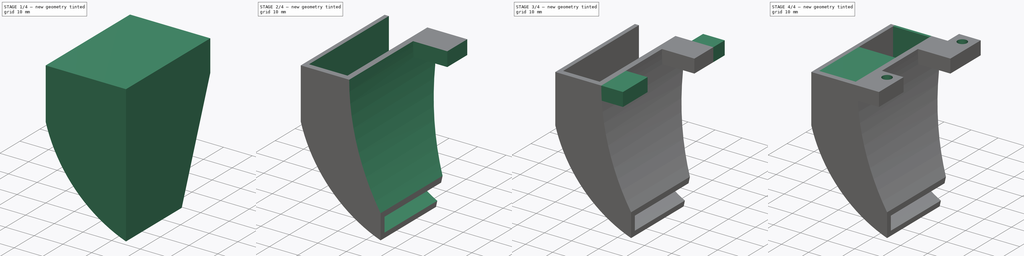
[diagram: build sequence overview — one tinted view per stage of 4, left to right]
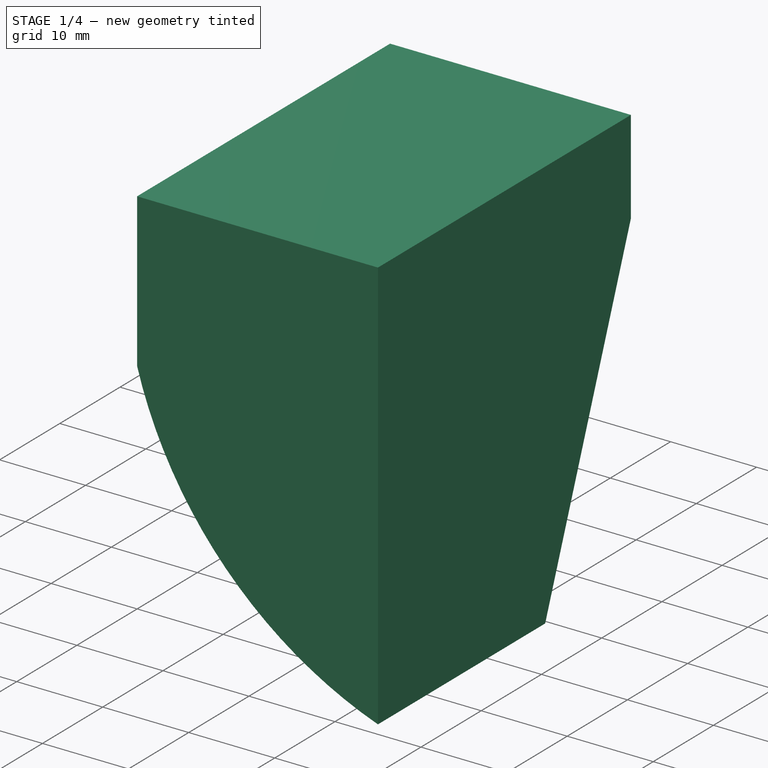
[diagram: stage 1 of 4 — iso view after this stage's code; geometry added in this stage tinted green]
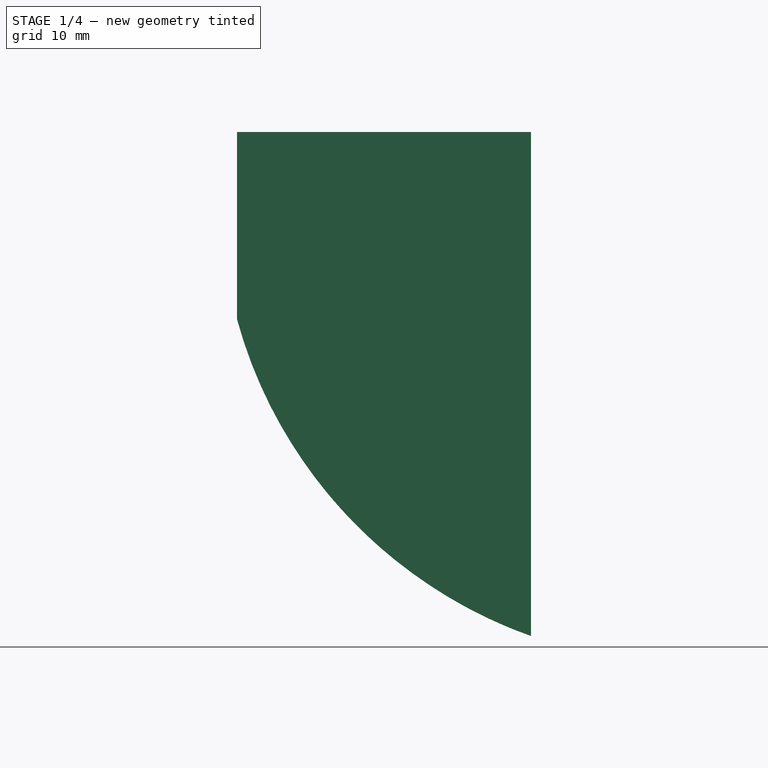
[diagram: stage 1 of 4 — front view after this stage's code; geometry added in this stage tinted green]
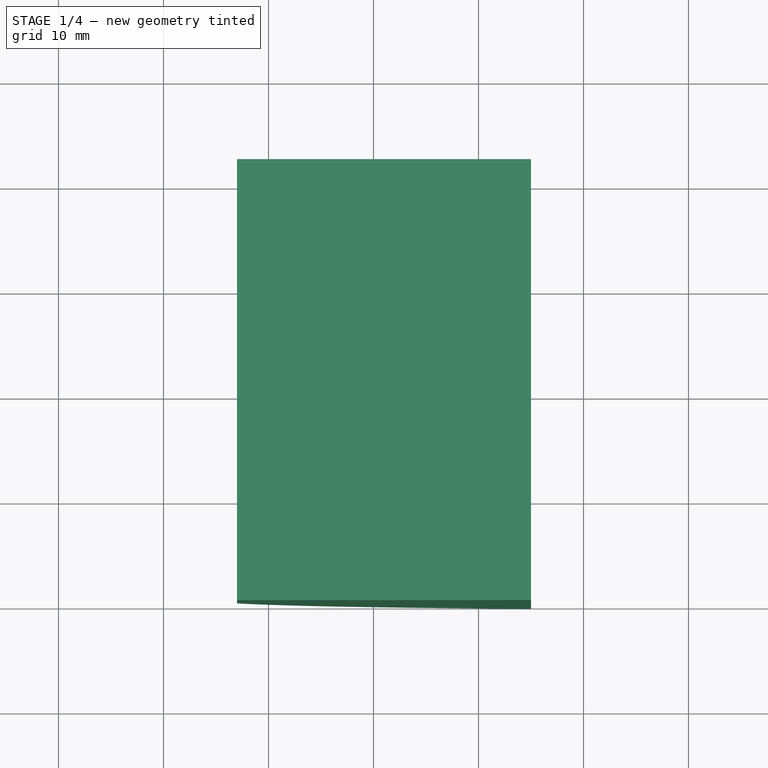
[diagram: stage 1 of 4 — top view after this stage's code; geometry added in this stage tinted green]
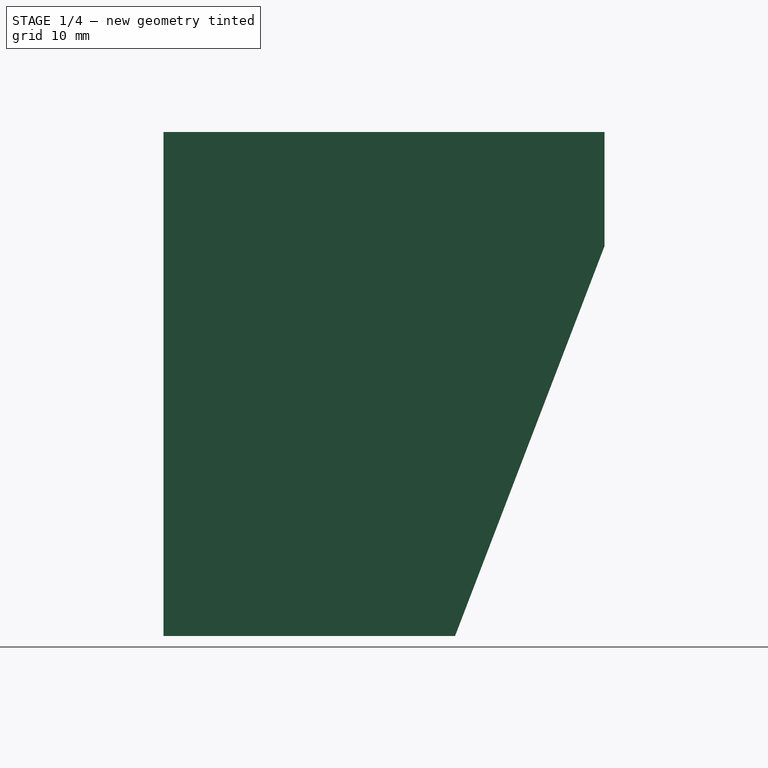
[diagram: stage 1 of 4 — right view after this stage's code; geometry added in this stage tinted green]
FCSTD DOCUMENT  (FreeCAD 0.19R)
Label: FanDuct
License: All rights reserved
LicenseURL: http://en.wikipedia.org/wiki/All_rights_reserved
objects: Sketcher::SketchObject×14, PartDesign::Pad×6, PartDesign::Pocket×5, PartDesign::Body×1
note: 37 computed .brp shape members not serialized (recipe doc carries the construction recipe); baked Part::Feature solids carry a one-line shape summary decoded from their .brp

FEATURE [Sketcher::SketchObject] Sketch
  FullyConstrained = true
  MapMode = 5
  Support = -> [XY_Plane]
  sketch-geometry (19):
    g0: Circle CenterX=0 CenterY=-40 CenterZ=0 NormalX=0 NormalY=0 NormalZ=1 AngleXU=0 Radius=4.5
    g1: Circle CenterX=-22 CenterY=-40 CenterZ=0 NormalX=0 NormalY=0 NormalZ=1 AngleXU=0 Radius=2.5
    g2: Circle CenterX=-18 CenterY=-6 CenterZ=0 NormalX=0 NormalY=0 NormalZ=1 AngleXU=0 Radius=1.9
    g3: LineSegment StartX=-28 StartY=0 StartZ=0 EndX=0 EndY=0 EndZ=0
    g4: LineSegment StartX=0 StartY=0 StartZ=0 EndX=0 EndY=-50 EndZ=0
    g5: LineSegment StartX=0 StartY=-50 StartZ=0 EndX=-28 EndY=-50 EndZ=0
    g6: LineSegment StartX=-28 StartY=-50 StartZ=0 EndX=-28 EndY=0 EndZ=0
    g7: LineSegment StartX=-43 StartY=-8 StartZ=0 EndX=-28 EndY=-8 EndZ=0
    g8: LineSegment StartX=-28 StartY=-8 StartZ=0 EndX=-28 EndY=-28 EndZ=0
    g9: LineSegment StartX=-28 StartY=-28 StartZ=0 EndX=-43 EndY=-28 EndZ=0
    g10: LineSegment StartX=-43 StartY=-28 StartZ=0 EndX=-43 EndY=-8 EndZ=0
    g11: LineSegment StartX=-43 StartY=-8 StartZ=0 EndX=-15 EndY=-8 EndZ=0
    g12: LineSegment StartX=-15 StartY=-8 StartZ=0 EndX=-15 EndY=-50 EndZ=0
    g13: LineSegment StartX=-15 StartY=-50 StartZ=0 EndX=-43 EndY=-50 EndZ=0
    g14: LineSegment StartX=-43 StartY=-50 StartZ=0 EndX=-43 EndY=-8 EndZ=0
    g15: LineSegment StartX=-8 StartY=-27 StartZ=0 EndX=8 EndY=-27 EndZ=0
    g16: LineSegment StartX=8 StartY=-27 StartZ=0 EndX=8 EndY=-47 EndZ=0
    g17: LineSegment StartX=8 StartY=-47 StartZ=0 EndX=-8 EndY=-47 EndZ=0
    g18: LineSegment StartX=-8 StartY=-47 StartZ=0 EndX=-8 EndY=-27 EndZ=0
  constraints (55):
    c: Diameter(g0) = 9
    c: PointOnObject(g0,g-2)
    c: DistanceY(g0) = -40
    c: Diameter(g1) = 5
    c: DistanceX(g1) = -22
    c: DistanceY(g1) = -40
    c: Diameter(g2) = 3.8
    c: DistanceY(g2) = -6
    c: DistanceX(g2) = -18
    c: Coincident(g3,g4)
    c: Coincident(g4,g5)
    c: Coincident(g5,g6)
    c: Coincident(g6,g3)
    c: Horizontal(g3)
    c: Horizontal(g5)
    c: Vertical(g4)
    c: Vertical(g6)
    c: PointOnObject(g3,g-1)
    c: PointOnObject(g4,g-2)
    c: DistanceX(g3) = -28
    c: DistanceY(g4) = -50
    c: Coincident(g7,g8)
    c: Coincident(g8,g9)
    c: Coincident(g9,g10)
    c: Coincident(g10,g7)
    c: Horizontal(g7)
    c: Horizontal(g9)
    c: Vertical(g8)
    c: Vertical(g10)
    c: DistanceY(g7) = -8
    c: DistanceY(g8) = -28
    c: DistanceX(g7) = -43
    c: DistanceX(g7) = -28
    c: Coincident(g11,g12)
    c: Coincident(g12,g13)
    c: Coincident(g13,g14)
    c: Coincident(g14,g11)
    c: Horizontal(g11)
    c: Horizontal(g13)
    c: Vertical(g12)
    c: Vertical(g14)
    c: Coincident(g11,g7)
    c: PointOnObject(g12,g5)
    c: Coincident(g15,g16)
    c: Coincident(g16,g17)
    c: Coincident(g17,g18)
    c: Coincident(g18,g15)
    c: Horizontal(g15)
    c: Vertical(g16)
    c: Vertical(g18)
    c: Symmetric(g16,g17,g-2)
    c: Distance(g17) = 16
    c: Distance(g16) = 20
    c: DistanceY(g16,g0) = 7
    c: Distance(g15,g12) = 7
FEATURE [PartDesign::Pad] Pad
  Direction = (1,1,1)
  Length = 48
  Length2 = 100
  Profile = -> Sketch
  Reversed = true
  Type = 0
FEATURE [Sketcher::SketchObject] Sketch001
  ExternalGeometry = -> [Pad]
  FullyConstrained = true
  MapMode = 5
  Placement = pos=(0,-50,0) rot=(1,0,0;1.5708rad)
  Support = -> [Pad]
  sketch-geometry (7):
    g0: LineSegment StartX=-8 StartY=-28 StartZ=0 EndX=8 EndY=-28 EndZ=0
    g1: LineSegment StartX=8 StartY=-28 StartZ=0 EndX=8 EndY=-40 EndZ=0
    g2: LineSegment StartX=8 StartY=-40 StartZ=0 EndX=-8 EndY=-40 EndZ=0
    g3: LineSegment StartX=-8 StartY=-40 StartZ=0 EndX=-8 EndY=-28 EndZ=0
    g4: ArcOfCircle CenterX=0 CenterY=-6 CenterZ=0 NormalX=0 NormalY=0 NormalZ=1 AngleXU=0 Radius=44.5982 StartAngle=3.41011 EndAngle=4.36937
    g5: LineSegment StartX=-15 StartY=-48 StartZ=0 EndX=-62.1015 EndY=-92.6627 EndZ=0
    g6: LineSegment StartX=-43 StartY=-17.8322 StartZ=0 EndX=-62.1015 EndY=-92.6627 EndZ=0
  constraints (20):
    c: Coincident(g0,g1)
    c: Coincident(g1,g2)
    c: Coincident(g2,g3)
    c: Coincident(g3,g0)
    c: Horizontal(g2)
    c: Vertical(g1)
    c: Vertical(g3)
    c: Distance(g0) = 16
    c: Symmetric(g0,g0,g-2)
    c: DistanceY(g1,g1) = 12
    c: DistanceY(g2) = -40
    c: PointOnObject(g4,g-2)
    c: PointOnObject(g4,g-3)
    c: DistanceY(g4) = -6
    c: Coincident(g4,g-4)
    c: Coincident(g5,g4)
    c: Coincident(g6,g4)
    c: Coincident(g6,g5)
    c: Distance(g5) = 64.91
    c: Distance(g6) = 77.23
FEATURE [PartDesign::Pocket] Pocket
  BaseFeature = -> Pad
  Length = 5
  Length2 = 100
  Profile = -> Sketch001
  Type = 1
FEATURE [Sketcher::SketchObject] Sketch002
  FullyConstrained = true
  MapMode = 5
  Placement = pos=(-15,0,0) rot=(0.57735,0.57735,0.57735;2.0944rad)
  Support = -> [Pocket]
  sketch-geometry (8):
    g0: LineSegment StartX=-50 StartY=-31 StartZ=0 EndX=-30 EndY=-31 EndZ=0
    g1: LineSegment StartX=-30 StartY=-31 StartZ=0 EndX=-30 EndY=-43 EndZ=0
    g2: LineSegment StartX=-30 StartY=-43 StartZ=0 EndX=-50 EndY=-43 EndZ=0
    g3: LineSegment StartX=-50 StartY=-43 StartZ=0 EndX=-50 EndY=-31 EndZ=0
    g4: GeomPoint X=-40 Y=-50 Z=0
    g5: LineSegment StartX=0 StartY=10 StartZ=0 EndX=-23 EndY=-50 EndZ=0
    g6: LineSegment StartX=0 StartY=10 StartZ=0 EndX=20.2416 EndY=-57.2184 EndZ=0
    g7: LineSegment StartX=-23 StartY=-50 StartZ=0 EndX=20.2416 EndY=-57.2184 EndZ=0
  constraints (23):
    c: Coincident(g0,g1)
    c: Coincident(g1,g2)
    c: Coincident(g2,g3)
    c: Coincident(g3,g0)
    c: Horizontal(g0)
    c: Horizontal(g2)
    c: Vertical(g1)
    c: Vertical(g3)
    c: Distance(g0) = 20
    c: Distance(g1) = 12
    c: DistanceX(g1) = -30
    c: DistanceY(g1) = -43
    c: DistanceY(g4) = -50
    c: DistanceX(g4) = -40
    c: Coincident(g6,g5)
    c: Coincident(g7,g5)
    c: Coincident(g7,g6)
    c: PointOnObject(g5,g-2)
    c: DistanceY(g5) = 10
    c: DistanceX(g5) = -23
    c: DistanceY(g5) = -50
    c: Distance(g7) = 43.84
    c: Distance(g6) = 70.2
FEATURE [PartDesign::Pocket] Pocket001
  BaseFeature = -> Pocket
  Length = 5
  Length2 = 100
  Profile = -> Sketch002
  Type = 1
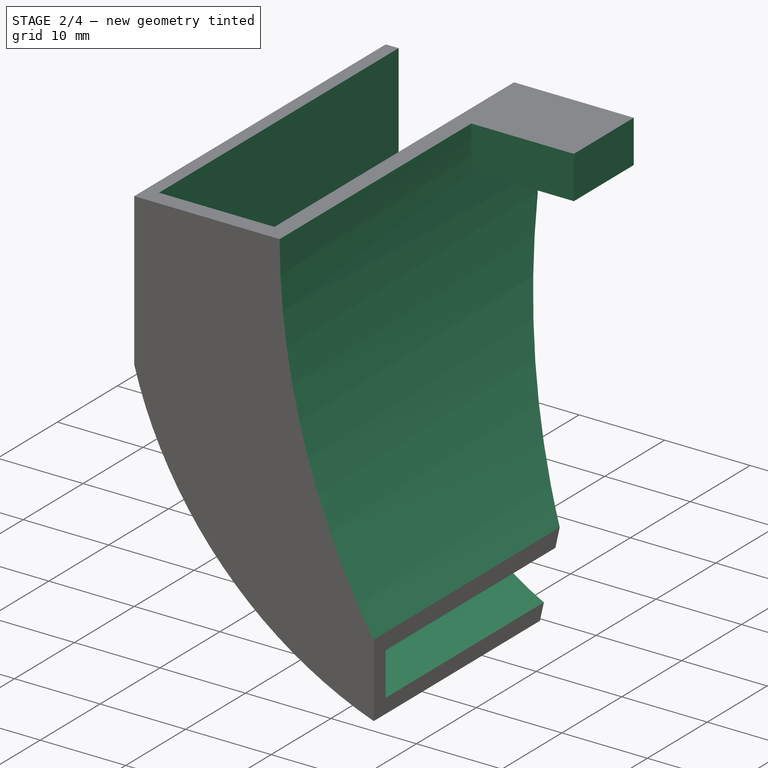
[diagram: stage 2 of 4 — iso view after this stage's code; geometry added in this stage tinted green]
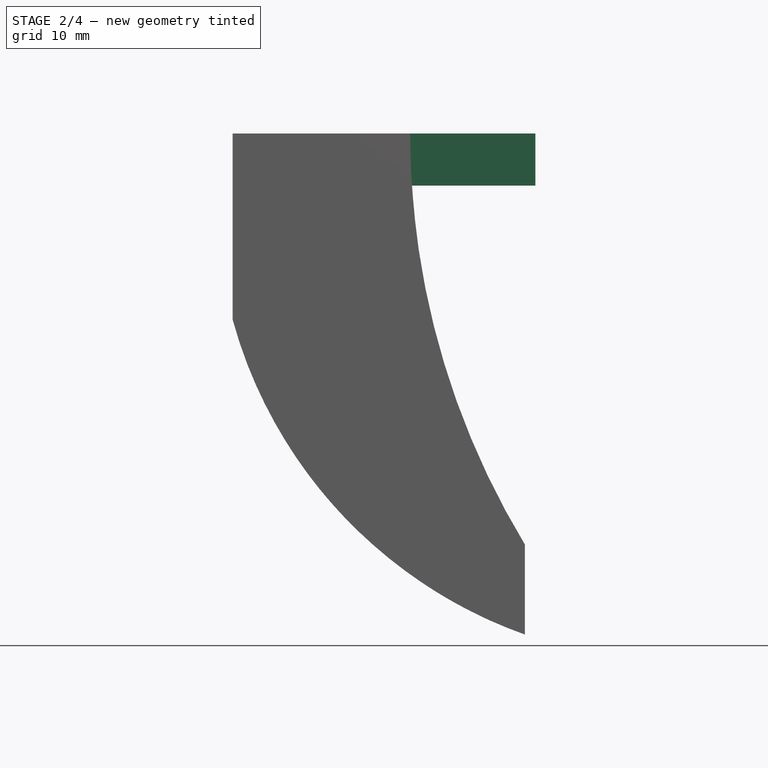
[diagram: stage 2 of 4 — front view after this stage's code; geometry added in this stage tinted green]
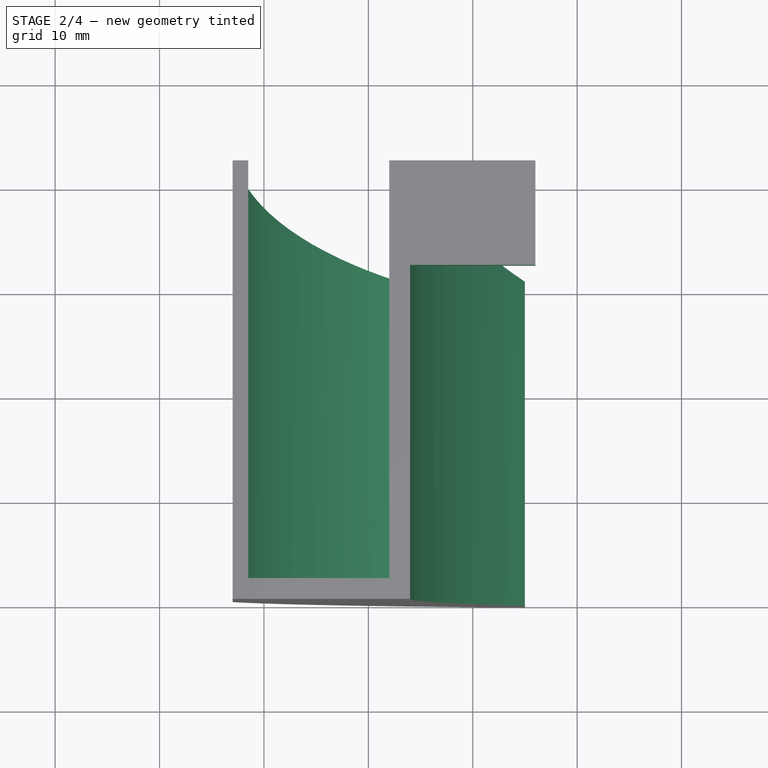
[diagram: stage 2 of 4 — top view after this stage's code; geometry added in this stage tinted green]
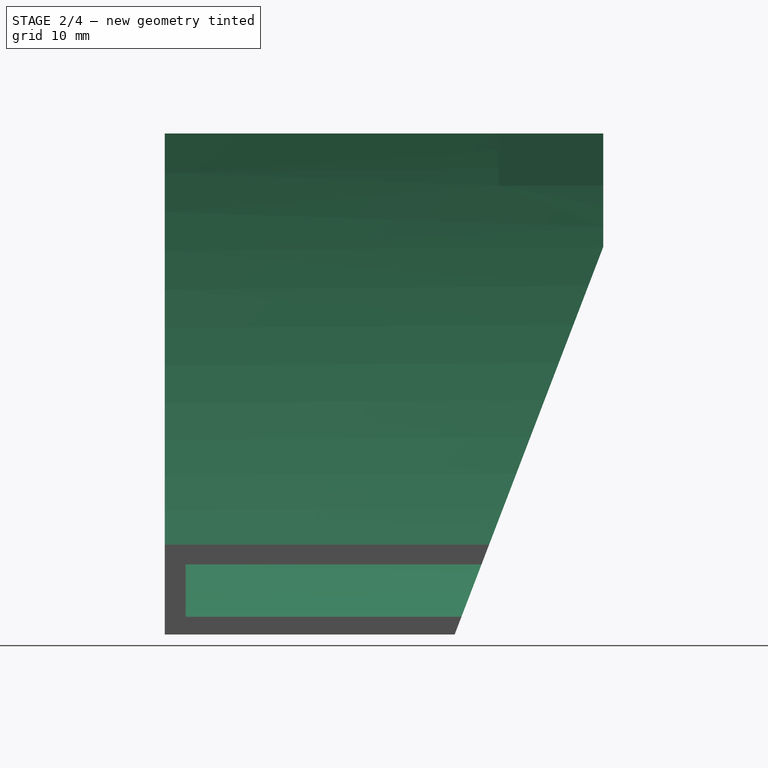
[diagram: stage 2 of 4 — right view after this stage's code; geometry added in this stage tinted green]
FEATURE [Sketcher::SketchObject] Sketch003
  FullyConstrained = true
  MapMode = 5
  Placement = pos=(0,-8,0) rot=(0,0.707107,0.707107;3.14159rad)
  Support = -> [Pocket001]
  sketch-geometry (8):
    g0: ArcOfCircle CenterX=0 CenterY=-6 CenterZ=0 NormalX=0 NormalY=0 NormalZ=1 AngleXU=0 Radius=43 StartAngle=4.71239 EndAngle=6.01828
    g1: LineSegment StartX=41.5 StartY=3 StartZ=0 EndX=41.5 EndY=-17.2583 EndZ=0
    g2: LineSegment StartX=41.5 StartY=3 StartZ=0 EndX=28 EndY=3 EndZ=0
    g3: LineSegment StartX=28 StartY=3 StartZ=0 EndX=28 EndY=-1.78e-14 EndZ=0
    g4: ArcOfCircle CenterX=-44.0179 CenterY=0 CenterZ=0 NormalX=0 NormalY=0 NormalZ=1 AngleXU=0 Radius=72.0179 StartAngle=5.36997 EndAngle=6.28319
    g5: ArcOfCircle CenterX=-44.0179 CenterY=0 CenterZ=0 NormalX=0 NormalY=0 NormalZ=1 AngleXU=0 Radius=72.0179 StartAngle=5.61316 EndAngle=6.28319
    g6: ArcOfCircle CenterX=0 CenterY=-6 CenterZ=0 NormalX=0 NormalY=0 NormalZ=1 AngleXU=0 Radius=43 StartAngle=5.00564 EndAngle=6.01828
    g7: LineSegment StartX=12.43 StartY=-44.7237 StartZ=0 EndX=12.43 EndY=-47.1642 EndZ=0
  constraints (26):
    c: PointOnObject(g0,g-2)
    c: PointOnObject(g0,g-2)
    c: DistanceY(g0) = -6
    c: DistanceY(g0) = -49
    c: Coincident(g1,g0)
    c: Vertical(g1)
    c: DistanceX(g1) = 41.5
    c: DistanceY(g1) = 3
    c: Coincident(g2,g1)
    c: Horizontal(g2)
    c: Coincident(g3,g2)
    c: Vertical(g3)
    c: DistanceX(g2) = 28
    c: Coincident(g4,g3)
    c: PointOnObject(g3,g-1)
    c: PointOnObject(g4,g-2)
    c: PointOnObject(g4,g-1)
    c: Distance(g4,g0) = 8
    c: Coincident(g5,g4)
    c: Coincident(g5,g3)
    c: Coincident(g6,g0)
    c: Coincident(g6,g1)
    c: Coincident(g7,g5)
    c: Coincident(g7,g6)
    c: Vertical(g7)
    c: DistanceX(g5) = 12.43
FEATURE [PartDesign::Pocket] Pocket002
  BaseFeature = -> Pocket001
  Length = 40
  Length2 = 100
  Profile = -> Sketch003
  Type = 0
FEATURE [Sketcher::SketchObject] Sketch004
  ExternalGeometry = -> [Pocket002]
  FullyConstrained = true
  MapMode = 5
  Placement = pos=(0,-50,0) rot=(1,0,0;1.5708rad)
  Support = -> [Pocket002]
  sketch-geometry (3):
    g0: ArcOfCircle CenterX=50 CenterY=0 CenterZ=0 NormalX=0 NormalY=0 NormalZ=1 AngleXU=0 Radius=76 StartAngle=3.14159 EndAngle=4.32813
    g1: LineSegment StartX=-26 StartY=9.3e-15 StartZ=0 EndX=50 EndY=0 EndZ=0
    g2: LineSegment StartX=21.51 StartY=-70.4579 StartZ=0 EndX=50 EndY=0 EndZ=0
  constraints (9):
    c: PointOnObject(g0,g-1)
    c: PointOnObject(g0,g-1)
    c: DistanceX(g0) = -26
    c: Coincident(g1,g0)
    c: Coincident(g1,g0)
    c: Coincident(g2,g0)
    c: Coincident(g2,g0)
    c: DistanceX(g0) = 50
    c: DistanceX(g0) = 21.51
FEATURE [PartDesign::Pocket] Pocket003
  BaseFeature = -> Pocket002
  Length = 5
  Length2 = 100
  Profile = -> Sketch004
  Type = 1
FEATURE [Sketcher::SketchObject] Sketch005
  FullyConstrained = false
  MapMode = 5
  Placement = pos=(0,-8,0) rot=(0,0.707107,0.707107;3.14159rad)
  Support = -> [Pocket003]
  sketch-geometry (4):
    g0: LineSegment StartX=14 StartY=0 StartZ=0 EndX=26.8847 EndY=0 EndZ=0
    g1: LineSegment StartX=26.8847 StartY=0 StartZ=0 EndX=26.8847 EndY=-5 EndZ=0
    g2: LineSegment StartX=26.8847 StartY=-5 StartZ=0 EndX=14 EndY=-5 EndZ=0
    g3: LineSegment StartX=14 StartY=-5 StartZ=0 EndX=14 EndY=0 EndZ=0
  constraints (11):
    c: Coincident(g0,g1)
    c: Coincident(g1,g2)
    c: Coincident(g2,g3)
    c: Coincident(g3,g0)
    c: Horizontal(g0)
    c: Horizontal(g2)
    c: Vertical(g1)
    c: Vertical(g3)
    c: PointOnObject(g0,g-1)
    c: DistanceX(g0) = 14
    c: Distance(g3) = 5
FEATURE [PartDesign::Pad] Pad001
  BaseFeature = -> Pocket003
  Direction = (1,1,1)
  Length = 10
  Length2 = 100
  Profile = -> Sketch005
  Reversed = true
  Type = 0
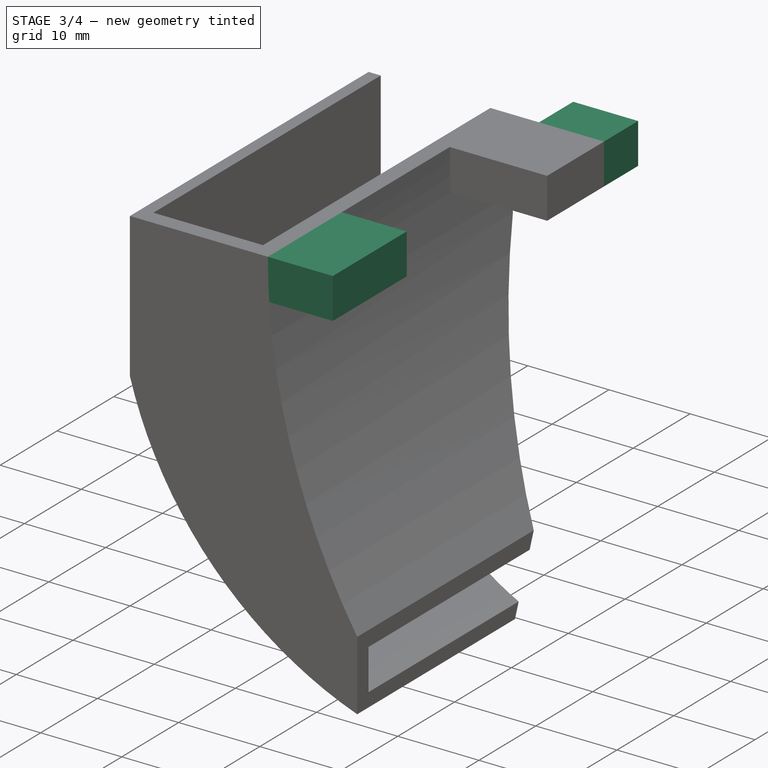
[diagram: stage 3 of 4 — iso view after this stage's code; geometry added in this stage tinted green]
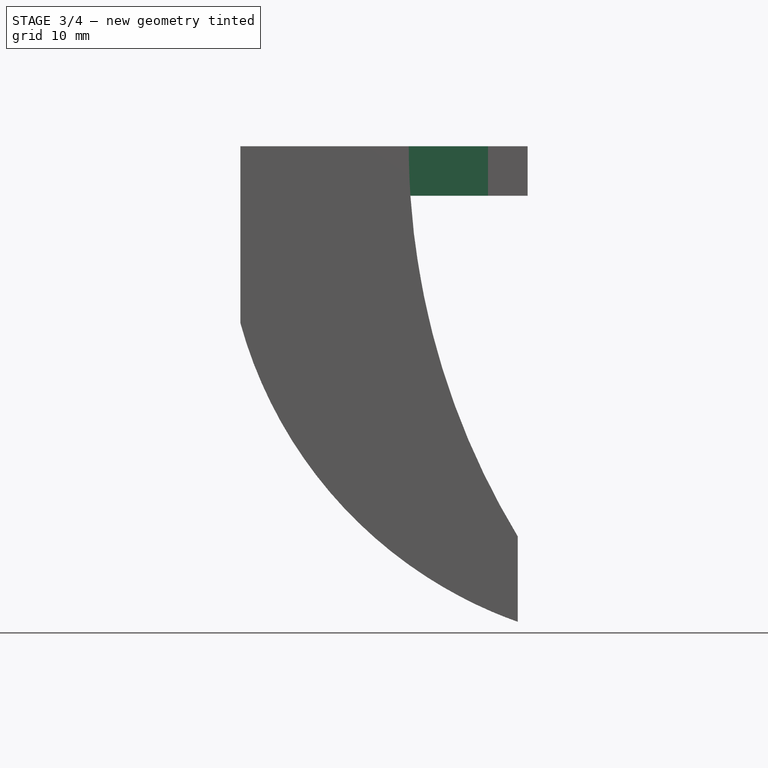
[diagram: stage 3 of 4 — front view after this stage's code; geometry added in this stage tinted green]
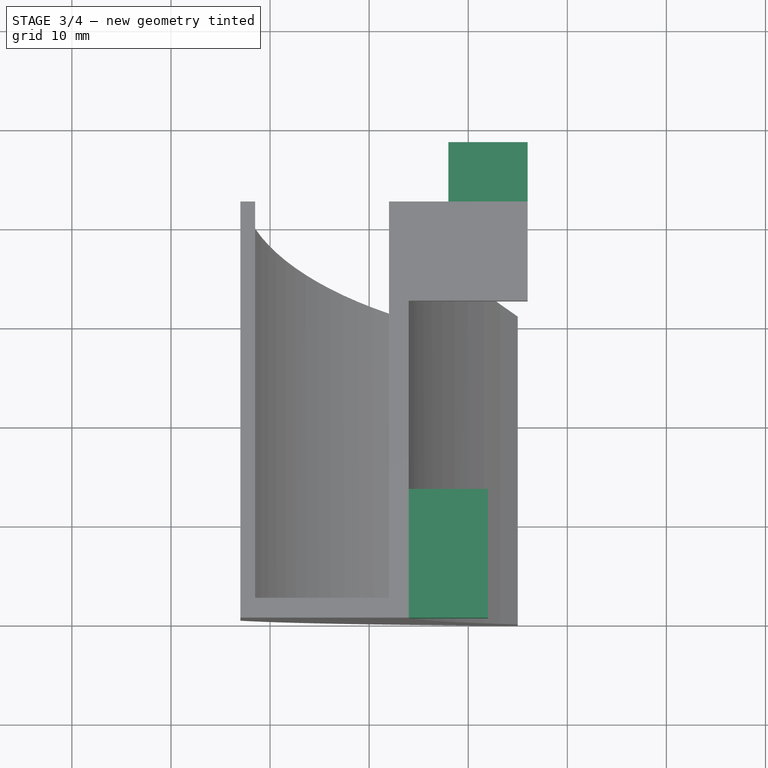
[diagram: stage 3 of 4 — top view after this stage's code; geometry added in this stage tinted green]
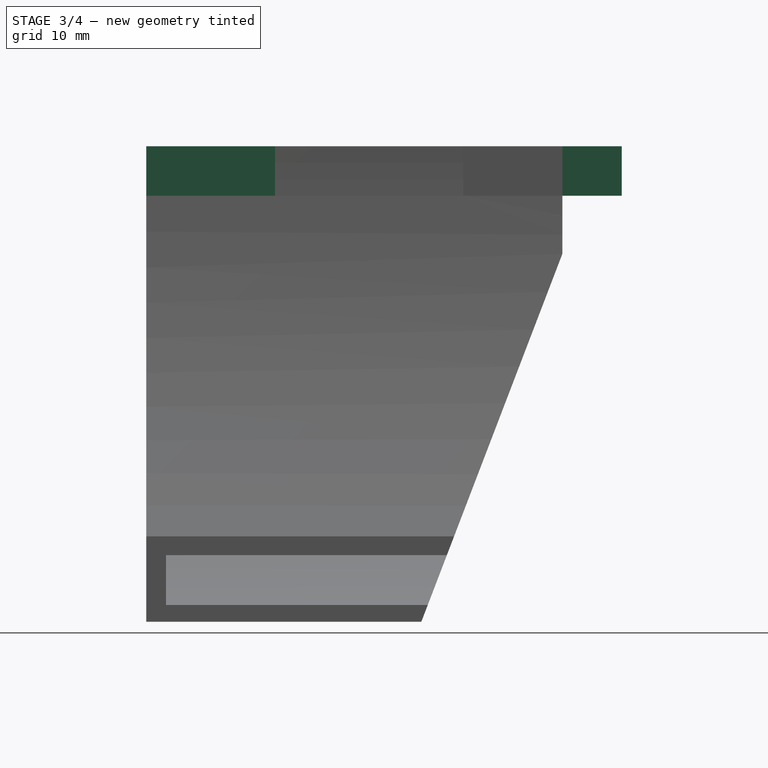
[diagram: stage 3 of 4 — right view after this stage's code; geometry added in this stage tinted green]
FEATURE [Sketcher::SketchObject] Sketch006
  FullyConstrained = true
  MapMode = 5
  Placement = pos=(0,-8,2.8e-15) rot=(0,0.707107,0.707107;3.14159rad)
  Support = -> [Pad001]
  sketch-geometry (4):
    g0: LineSegment StartX=14 StartY=0 StartZ=0 EndX=22 EndY=0 EndZ=0
    g1: LineSegment StartX=22 StartY=0 StartZ=0 EndX=22 EndY=-5 EndZ=0
    g2: LineSegment StartX=22 StartY=-5 StartZ=0 EndX=14 EndY=-5 EndZ=0
    g3: LineSegment StartX=14 StartY=-5 StartZ=0 EndX=14 EndY=0 EndZ=0
  constraints (12):
    c: Coincident(g0,g1)
    c: Coincident(g1,g2)
    c: Coincident(g2,g3)
    c: Coincident(g3,g0)
    c: Horizontal(g0)
    c: Horizontal(g2)
    c: Vertical(g1)
    c: Vertical(g3)
    c: PointOnObject(g0,g-1)
    c: DistanceX(g0) = 14
    c: Distance(g3) = 5
    c: Distance(g0) = 8
FEATURE [PartDesign::Pad] Pad002
  BaseFeature = -> Pad001
  Direction = (1,1,1)
  Length = 6
  Length2 = 100
  Profile = -> Sketch006
  Type = 0
FEATURE [Sketcher::SketchObject] Sketch007
  FullyConstrained = true
  MapMode = 5
  Placement = pos=(0,-50,0) rot=(1,0,0;1.5708rad)
  Support = -> [Pad002]
  sketch-geometry (4):
    g0: LineSegment StartX=-27 StartY=0 StartZ=0 EndX=-18 EndY=0 EndZ=0
    g1: LineSegment StartX=-18 StartY=0 StartZ=0 EndX=-18 EndY=-5 EndZ=0
    g2: LineSegment StartX=-18 StartY=-5 StartZ=0 EndX=-27 EndY=-5 EndZ=0
    g3: LineSegment StartX=-27 StartY=-5 StartZ=0 EndX=-27 EndY=0 EndZ=0
  constraints (12):
    c: Coincident(g0,g1)
    c: Coincident(g1,g2)
    c: Coincident(g2,g3)
    c: Coincident(g3,g0)
    c: Horizontal(g0)
    c: Horizontal(g2)
    c: Vertical(g1)
    c: Vertical(g3)
    c: DistanceX(g0) = -18
    c: PointOnObject(g0,g-1)
    c: Distance(g1) = 5
    c: Distance(g0) = 9
FEATURE [PartDesign::Pad] Pad003
  BaseFeature = -> Pad002
  Direction = (1,1,1)
  Length = 13
  Length2 = 100
  Profile = -> Sketch007
  Reversed = true
  Type = 0
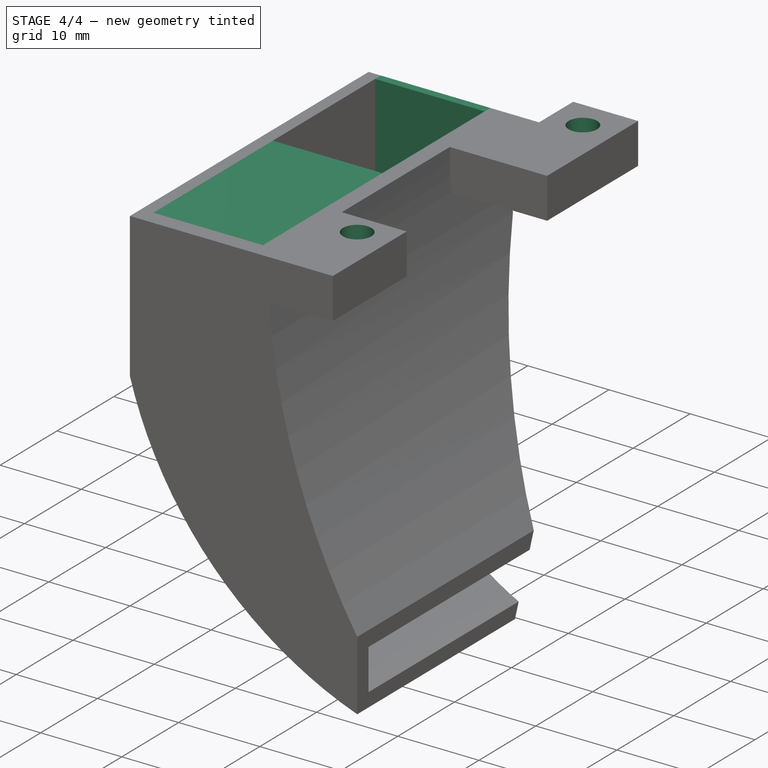
[diagram: stage 4 of 4 — iso view after this stage's code; geometry added in this stage tinted green]
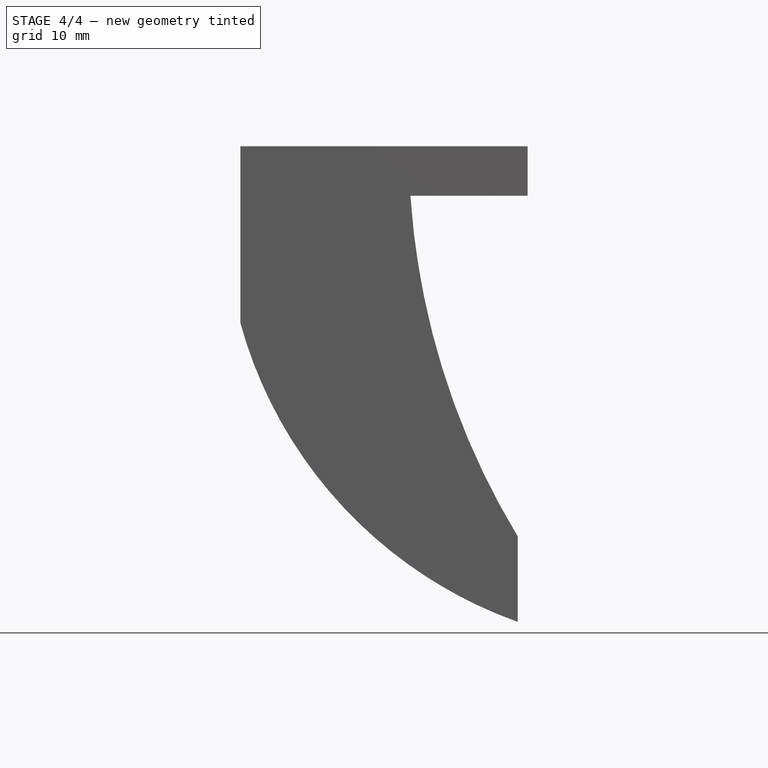
[diagram: stage 4 of 4 — front view after this stage's code; geometry added in this stage tinted green]
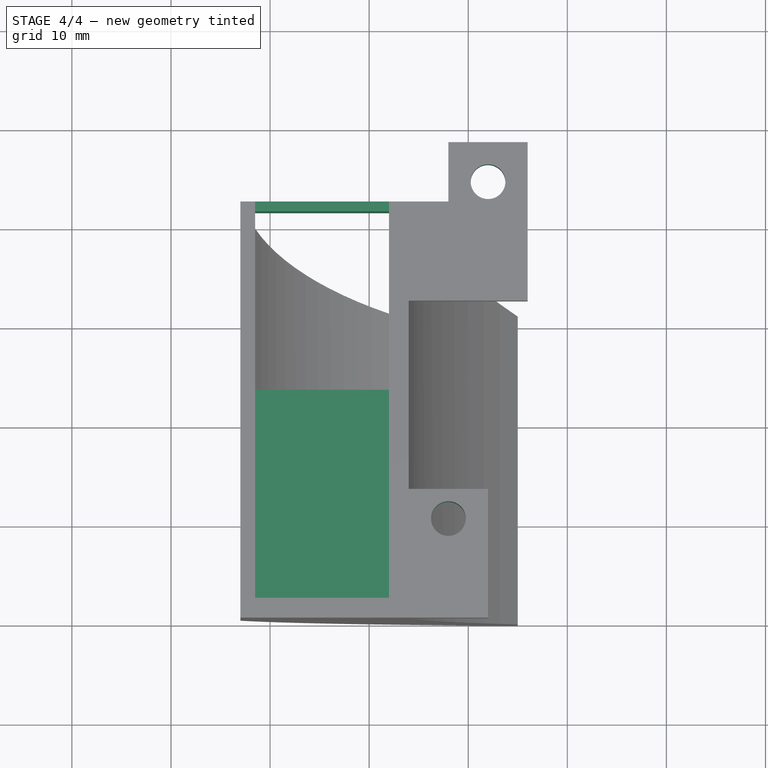
[diagram: stage 4 of 4 — top view after this stage's code; geometry added in this stage tinted green]
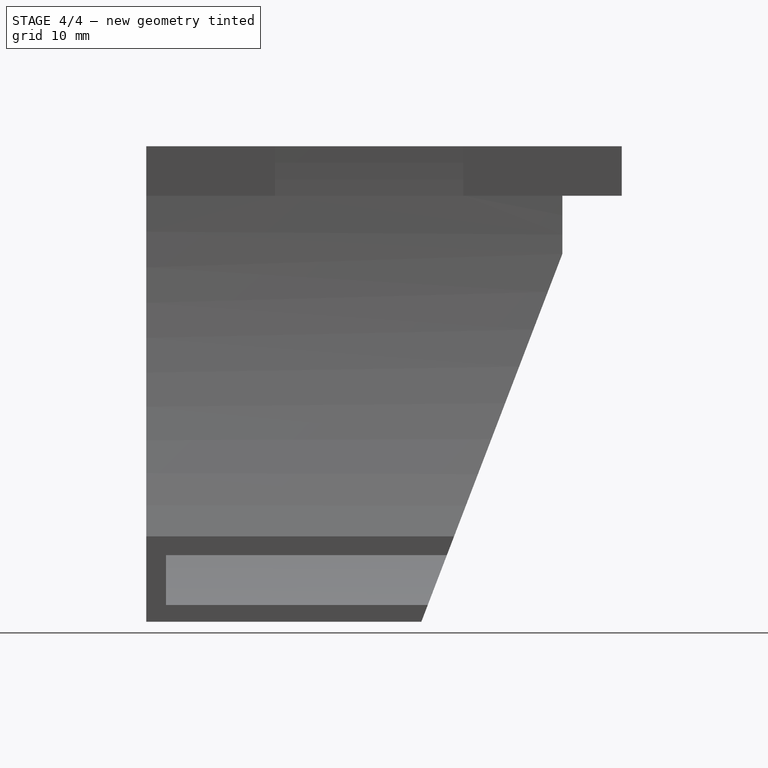
[diagram: stage 4 of 4 — right view after this stage's code; geometry added in this stage tinted green]
FEATURE [Sketcher::SketchObject] Sketch008
  FullyConstrained = true
  MapMode = 5
  Placement = pos=(-18,0,0) rot=(0.57735,0.57735,0.57735;2.0944rad)
  Support = -> [Pad003]
  sketch-geometry (1):
    g0: LineSegment StartX=0 StartY=0 StartZ=0 EndX=-40 EndY=0 EndZ=0
  constraints (3):
    c: Coincident(g0,g-1)
    c: PointOnObject(g0,g-1)
    c: Distance(g0) = 40
FEATURE [Sketcher::SketchObject] Sketch009
  FullyConstrained = true
  MapMode = 5
  Placement = pos=(0,0,-1.11e-14) rot=(0,0,1;0rad)
  Support = -> [Pad003]
  sketch-geometry (2):
    g0: Circle CenterX=-18 CenterY=-6 CenterZ=0 NormalX=0 NormalY=0 NormalZ=1 AngleXU=0 Radius=1.75
    g1: Circle CenterX=-22 CenterY=-40 CenterZ=0 NormalX=0 NormalY=0 NormalZ=1 AngleXU=0 Radius=1.75
  constraints (6):
    c: Diameter(g1) = 3.5
    c: Equal(g1,g0)
    c: DistanceY(g1) = -40
    c: DistanceX(g1) = -22
    c: DistanceY(g0) = -6
    c: DistanceX(g0) = -18
FEATURE [PartDesign::Pocket] Pocket004
  BaseFeature = -> Pad003
  Length = 6
  Length2 = 100
  Profile = -> Sketch009
  Type = 0
FEATURE [Sketcher::SketchObject] Sketch010
  ExternalGeometry = -> [Pocket004]
  FullyConstrained = true
  MapMode = 5
  Support = -> [Pocket004]
  sketch-geometry (4):
    g0: LineSegment StartX=-43 StartY=-27 StartZ=0 EndX=-26.8847 EndY=-27 EndZ=0
    g1: LineSegment StartX=-26.8847 StartY=-27 StartZ=0 EndX=-26.8847 EndY=-50 EndZ=0
    g2: LineSegment StartX=-26.8847 StartY=-50 StartZ=0 EndX=-43 EndY=-50 EndZ=0
    g3: LineSegment StartX=-43 StartY=-50 StartZ=0 EndX=-43 EndY=-27 EndZ=0
  constraints (11):
    c: Coincident(g1,g2)
    c: Coincident(g2,g3)
    c: Coincident(g3,g0)
    c: Horizontal(g0)
    c: Horizontal(g2)
    c: Vertical(g1)
    c: PointOnObject(g1,g-4)
    c: Coincident(g2,g-5)
    c: Distance(g0,g-3) = 19
    c: Coincident(g1,g0)
    c: PointOnObject(g0,g-3)
FEATURE [PartDesign::Pad] Pad004
  BaseFeature = -> Pocket004
  Direction = (1,1,1)
  Length = 1
  Length2 = 100
  Profile = -> Sketch010
  Reversed = true
  Type = 0
FEATURE [Sketcher::SketchObject] Sketch011
  ExternalGeometry = -> [Pad004]
  FullyConstrained = true
  MapMode = 5
  Placement = pos=(0,-8,0) rot=(0,0.707107,0.707107;3.14159rad)
  Support = -> [Pad004]
  sketch-geometry (4):
    g0: LineSegment StartX=26.8847 StartY=0 StartZ=0 EndX=43 EndY=0 EndZ=0
    g1: LineSegment StartX=43 StartY=0 StartZ=0 EndX=43 EndY=-10.8696 EndZ=0
    g2: LineSegment StartX=43 StartY=-10.8696 StartZ=0 EndX=26.8847 EndY=-10.8696 EndZ=0
    g3: LineSegment StartX=26.8847 StartY=-10.8696 StartZ=0 EndX=26.8847 EndY=0 EndZ=0
  constraints (10):
    c: Coincident(g0,g1)
    c: Coincident(g1,g2)
    c: Coincident(g2,g3)
    c: Coincident(g3,g0)
    c: Horizontal(g0)
    c: Horizontal(g2)
    c: Vertical(g1)
    c: Vertical(g3)
    c: Coincident(g0,g-4)
    c: Coincident(g1,g-3)
FEATURE [PartDesign::Pad] Pad005
  BaseFeature = -> Pad004
  Direction = (1,1,1)
  Length = 1
  Length2 = 100
  Profile = -> Sketch011
  Reversed = true
  Type = 0
FEATURE [Sketcher::SketchObject] Sketch012
  FullyConstrained = true
  MapMode = 5
  Placement = pos=(0,-3.34221,1.28118) rot=(0,0.823995,0.566597;3.14159rad)
  Support = -> [Pad005]
FEATURE [Sketcher::SketchObject] Sketch013
  ExternalGeometry = -> [Pad005]
  FullyConstrained = true
  MapMode = 5
  Placement = pos=(0,-3.34221,1.28118) rot=(0,0.823995,0.566597;3.14159rad)
  Support = -> [Pad005]
  sketch-geometry (4):
    g0: LineSegment StartX=43.95 StartY=-13.0129 StartZ=0 EndX=25.91 EndY=-13.0129 EndZ=0
    g1: ArcOfCircle CenterX=-4.62596 CenterY=-6.68184 CenterZ=0 NormalX=0 NormalY=0 NormalZ=1 AngleXU=0 Radius=48.9868 StartAngle=5.09441 EndAngle=6.15358
    g2: ArcOfCircle CenterX=-49.7643 CenterY=-4.74136 CenterZ=0 NormalX=0 NormalY=0 NormalZ=1 AngleXU=0 Radius=76.125 StartAngle=5.61112 EndAngle=6.17431
    g3: LineSegment StartX=9.80615 StartY=-52.1373 StartZ=0 EndX=13.6362 EndY=-52.1373 EndZ=0
  constraints (14):
    c: Horizontal(g0)
    c: Coincident(g1,g0)
    c: PointOnObject(g-3,g0)
    c: Distance(g0) = 18.04
    c: DistanceX(g1) = -4.62596
    c: DistanceY(g1) = -6.68184
    c: Coincident(g2,g0)
    c: DistanceX(g0) = 43.95
    c: DistanceX(g2) = -49.7643
    c: DistanceY(g2) = -4.74136
    c: Coincident(g3,g2)
    c: Coincident(g3,g1)
    c: Distance(g3) = 3.83
    c: Horizontal(g3)
FEATURE [PartDesign::Body] Body
  Group = -> [Sketch,Pad,Sketch001,Pocket,Sketch002,Pocket001,Sketch003,Pocket002,Sketch004,Pocket003,Sketch005,Pad001,Sketch006,Pad002,Sketch007,Pad003,Sketch008,Sketch009,Pocket004,Sketch010,Pad004,Sketch011,Pad005,Sketch012,Sketch013]
  Origin = -> Origin
  Tip = -> Pad005
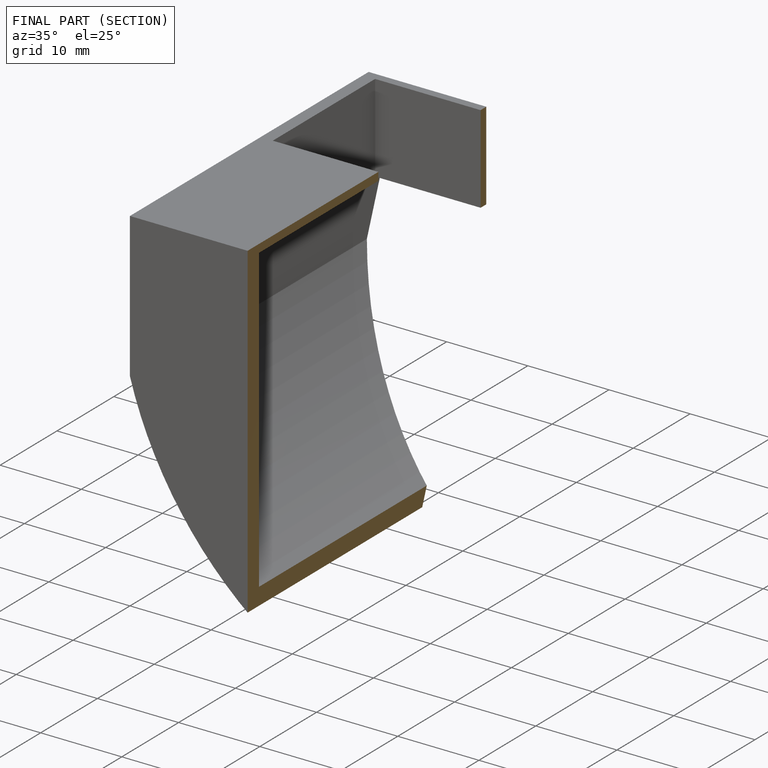
[diagram: finished part — half-section view (interior)]
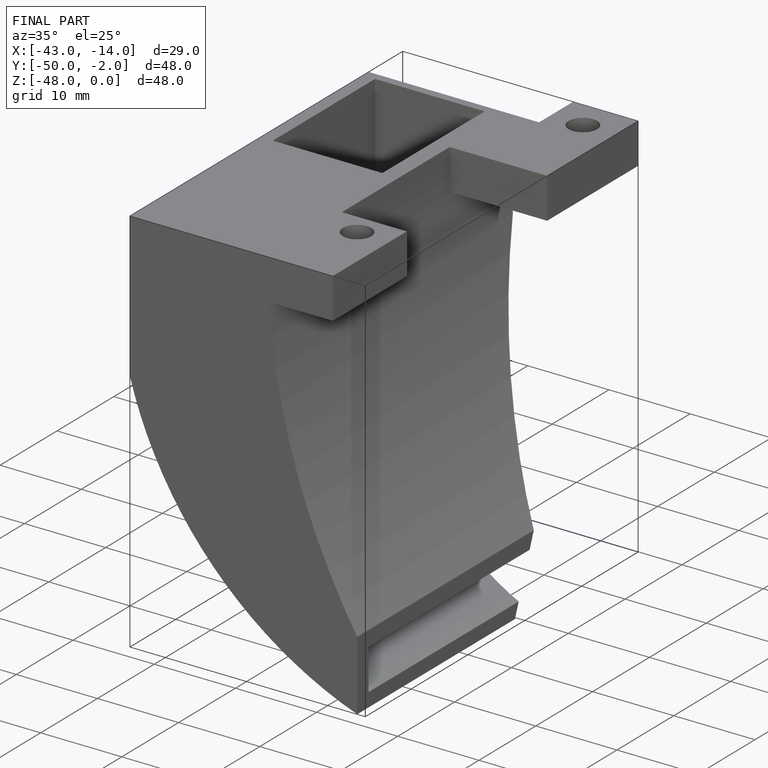
[diagram: finished part — iso view with bounding-box wireframe]
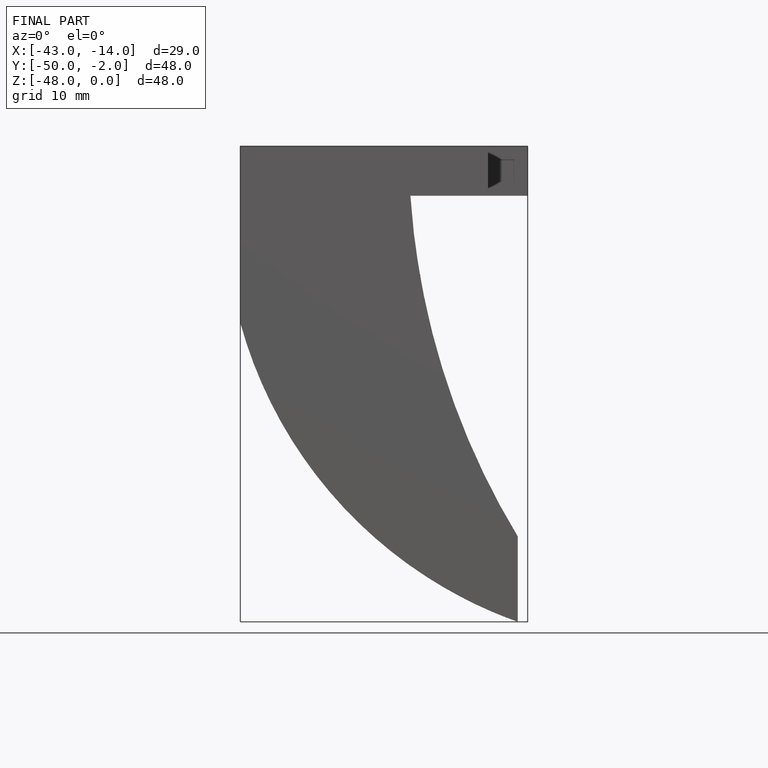
[diagram: finished part — front view with bounding-box wireframe]
